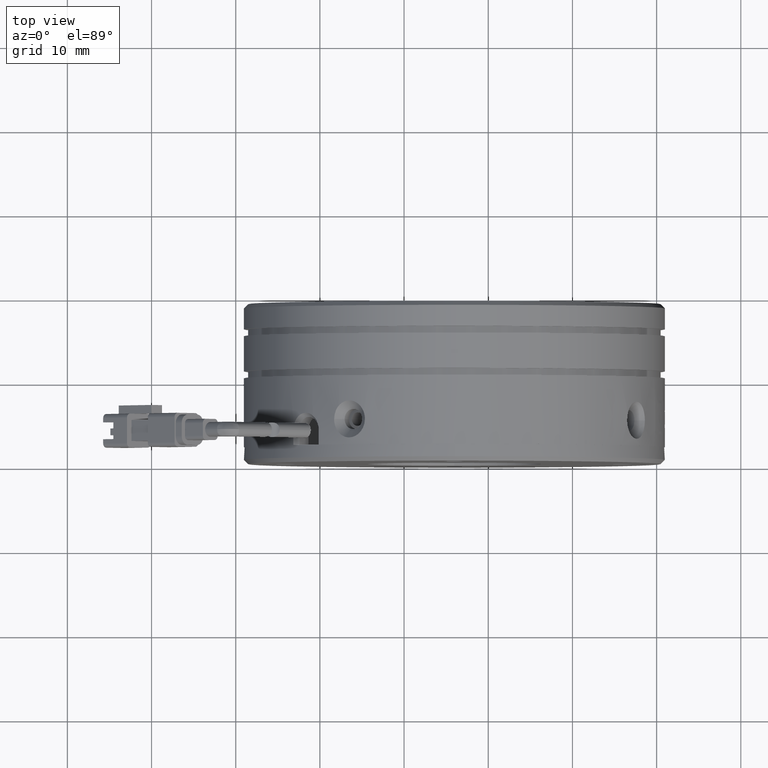
[diagram: clean part render]
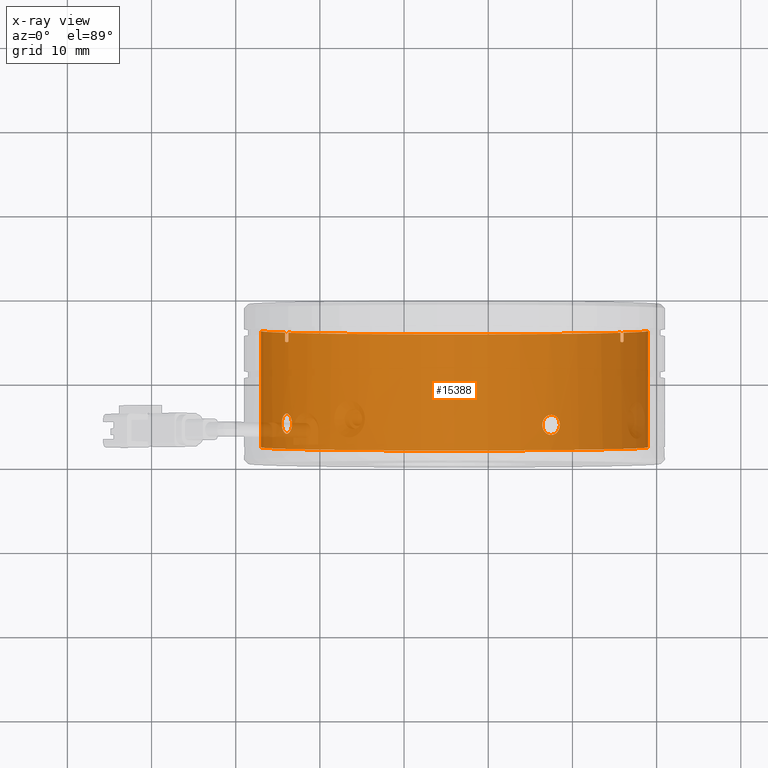
[diagram: x-ray — body ghosted, one internal face saturated and labeled with its STEP entity id]
A machine part, top view, then the same camera in x-ray: the body is ghosted and one INTERNAL B-rep face — a face not visible from any outside direction — is saturated and labeled: STEP entity #15388.
In plain terms, the highlighted cylindrical surface (partial cylindrical patch) has radius 23 mm, axis along (0, -1, 0).
Its self-contained STEP definition (entity closure, byte-faithful):
#498 = CARTESIAN_POINT ( 'NONE',  ( -27.02581863871307600, 15.96823414706070900, 3.167454145892285200E-015 ) ) ;
#734 = ORIENTED_EDGE ( 'NONE', *, *, #17770, .T. ) ;
#788 = CARTESIAN_POINT ( 'NONE',  ( 6.554392098376819600, 4.563459004488598800, -20.42211488420486600 ) ) ;
#910 = EDGE_CURVE ( 'NONE', #18039, #6009, #49071, .T. ) ;
#985 = CARTESIAN_POINT ( 'NONE',  ( 8.497749005629934500, 5.009664952951660600, -19.29145545202758800 ) ) ;
#1733 = CARTESIAN_POINT ( 'NONE',  ( 6.947721575141827100, 6.217228150472411800, -20.21391931231695000 ) ) ;
#1979 = VERTEX_POINT ( 'NONE', #54995 ) ;
#1988 = VERTEX_POINT ( 'NONE', #9140 ) ;
#2031 = EDGE_CURVE ( 'NONE', #18802, #6009, #47375, .T. ) ;
#2530 = CARTESIAN_POINT ( 'NONE',  ( -24.13126204309777700, 19.16823414706070800, -11.17010051490515300 ) ) ;
#2740 = FACE_BOUND ( 'NONE', #37409, .T. ) ;
#2898 = CARTESIAN_POINT ( 'NONE',  ( -24.51727409074066000, 5.168234147060708500, -10.44510667526038500 ) ) ;
#3102 = CARTESIAN_POINT ( 'NONE',  ( -23.44728358399235200, 4.431013859115802600, -12.32149658551559700 ) ) ;
#3816 = VERTEX_POINT ( 'NONE', #18773 ) ;
#3944 = DIRECTION ( 'NONE',  ( 0.0000000000000000000, 1.000000000000000000, -0.0000000000000000000 ) ) ;
#3958 = CARTESIAN_POINT ( 'NONE',  ( -23.39960735652817500, 5.773009289632813800, -12.39596492018088700 ) ) ;
#4165 = CARTESIAN_POINT ( 'NONE',  ( -24.51727409074070600, 5.326803341169756400, -10.44510667526032000 ) ) ;
#4172 = ORIENTED_EDGE ( 'NONE', *, *, #50453, .F. ) ;
#4239 = CARTESIAN_POINT ( 'NONE',  ( 15.70049387221283300, 19.16823414706070800, -11.82677448509476600 ) ) ;
#4655 = LINE ( 'NONE', #4239, #51200 ) ;
#4692 = VERTEX_POINT ( 'NONE', #17653 ) ;
#5312 = ORIENTED_EDGE ( 'NONE', *, *, #41143, .T. ) ;
#5541 = CARTESIAN_POINT ( 'NONE',  ( 6.829413851103458600, 4.209014772784638800, -20.27747997956227600 ) ) ;
#5896 = ORIENTED_EDGE ( 'NONE', *, *, #15730, .F. ) ;
#6009 = VERTEX_POINT ( 'NONE', #53105 ) ;
#6428 = ORIENTED_EDGE ( 'NONE', *, *, #26350, .F. ) ;
#6527 = CARTESIAN_POINT ( 'NONE',  ( 6.632915089850048000, 5.905454435005612600, -20.38146152833930100 ) ) ;
#6947 = VECTOR ( 'NONE', #16332, 1000.000000000000000 ) ;
#7631 = ORIENTED_EDGE ( 'NONE', *, *, #39991, .F. ) ;
#7745 = CARTESIAN_POINT ( 'NONE',  ( -24.50312569071227400, 4.854069292808167900, -10.47299057017806100 ) ) ;
#7943 = CARTESIAN_POINT ( 'NONE',  ( -23.33438525491072100, 4.853772240315541900, -12.49731573444079500 ) ) ;
#8075 = CARTESIAN_POINT ( 'NONE',  ( -24.03305864746466400, 14.85614627210344100, -11.34558758762871700 ) ) ;
#8536 = VERTEX_POINT ( 'NONE', #19551 ) ;
#8791 = CARTESIAN_POINT ( 'NONE',  ( -23.56546572866146900, 6.127453521336774700, -12.13319654212314300 ) ) ;
#9019 = VECTOR ( 'NONE', #55406, 1000.000000000000000 ) ;
#9140 = CARTESIAN_POINT ( 'NONE',  ( 6.419288036547239800, 5.168234147060708500, -20.49145545202761900 ) ) ;
#9216 = VERTEX_POINT ( 'NONE', #498 ) ;
#10173 = CARTESIAN_POINT ( 'NONE',  ( 6.419288036547239800, 5.168234147060708500, -20.49145545202761900 ) ) ;
#10306 = ORIENTED_EDGE ( 'NONE', *, *, #910, .T. ) ;
#10371 = CARTESIAN_POINT ( 'NONE',  ( 7.200301966129214500, 3.999887109736792300, -20.07473702314969400 ) ) ;
#11175 = CARTESIAN_POINT ( 'NONE',  ( 8.471554184323547800, 5.482399001313250000, -19.30852941336860000 ) ) ;
#11383 = CARTESIAN_POINT ( 'NONE',  ( 6.447232694357950300, 5.482696053805874200, -20.47727621323946300 ) ) ;
#11857 = ORIENTED_EDGE ( 'NONE', *, *, #2031, .F. ) ;
#12242 = VECTOR ( 'NONE', #33019, 1000.000000000000000 ) ;
#12603 = CARTESIAN_POINT ( 'NONE',  ( -24.40690138792054900, 4.430366498306113100, -10.65944335786233300 ) ) ;
#12830 = CARTESIAN_POINT ( 'NONE',  ( -23.31727409074066400, 5.168234147060708500, -12.52356764434301100 ) ) ;
#12871 = CARTESIAN_POINT ( 'NONE',  ( 15.82892478249419300, 14.84279221929445700, -11.61060035468653600 ) ) ;
#13224 = CIRCLE ( 'NONE', #25995, 23.00000000000000000 ) ;
#13667 = CARTESIAN_POINT ( 'NONE',  ( -23.78529278002920600, 6.336581184384623800, -11.77217193391860100 ) ) ;
#15206 = CARTESIAN_POINT ( 'NONE',  ( 7.609031954448225200, 3.968127233988175500, -19.84073470178282200 ) ) ;
#15376 = CARTESIAN_POINT ( 'NONE',  ( -24.11658433066670800, 14.90745792059463100, -11.19651942816333300 ) ) ;
#15388 = ADVANCED_FACE ( 'NONE', ( #41127, #2740, #55308 ), #35134, .F. ) ;
#15597 = ORIENTED_EDGE ( 'NONE', *, *, #47476, .F. ) ;
#15730 = EDGE_CURVE ( 'NONE', #18039, #3816, #13224, .T. ) ;
#15989 = CARTESIAN_POINT ( 'NONE',  ( 8.294995099802328300, 5.906101795815303900, -19.42189011271373600 ) ) ;
#16210 = CARTESIAN_POINT ( 'NONE',  ( 6.419288036547239800, 5.168234147060708500, -20.49145545202761900 ) ) ;
#16332 = DIRECTION ( 'NONE',  ( -0.0000000000000000000, -1.000000000000000000, 0.0000000000000000000 ) ) ;
#16478 = ORIENTED_EDGE ( 'NONE', *, *, #45438, .T. ) ;
#17094 = ORIENTED_EDGE ( 'NONE', *, *, #36845, .F. ) ;
#17287 = VECTOR ( 'NONE', #59570, 1000.000000000000000 ) ;
#17440 = CARTESIAN_POINT ( 'NONE',  ( -24.23992541391634600, 4.119610590637159400, -10.97318265881704500 ) ) ;
#17487 = CARTESIAN_POINT ( 'NONE',  ( 15.70049387221283300, 14.91823414709988100, -11.82677448509476600 ) ) ;
#17653 = CARTESIAN_POINT ( 'NONE',  ( 8.497749005629868800, 5.168234147060708500, -19.29145545202763000 ) ) ;
#17672 = CARTESIAN_POINT ( 'NONE',  ( 16.02016269395164400, 14.87457770175983800, -11.27712831792939200 ) ) ;
#17770 = EDGE_CURVE ( 'NONE', #18866, #3816, #4655, .T. ) ;
#17784 = ORIENTED_EDGE ( 'NONE', *, *, #44483, .F. ) ;
#17951 = DIRECTION ( 'NONE',  ( 0.0000000000000000000, -1.000000000000000000, 0.0000000000000000000 ) ) ;
#18039 = VERTEX_POINT ( 'NONE', #32704 ) ;
#18150 = CIRCLE ( 'NONE', #32766, 23.00000000000000000 ) ;
#18511 = CARTESIAN_POINT ( 'NONE',  ( -24.02226217251855900, 6.368341060133242400, -11.36515498491086400 ) ) ;
#18773 = CARTESIAN_POINT ( 'NONE',  ( 15.70049387221281900, 15.96823414706070900, -11.82677448509477200 ) ) ;
#18802 = VERTEX_POINT ( 'NONE', #41322 ) ;
#18866 = VERTEX_POINT ( 'NONE', #44767 ) ;
#19551 = CARTESIAN_POINT ( 'NONE',  ( 16.07962476567176300, 15.96823414706070900, -11.17010051490488800 ) ) ;
#19773 = CIRCLE ( 'NONE', #21257, 23.00000000000000000 ) ;
#19860 = EDGE_CURVE ( 'NONE', #18866, #26311, #34734, .T. ) ;
#20103 = CARTESIAN_POINT ( 'NONE',  ( 7.993178888874879800, 4.119240143649005100, -19.61032425080691200 ) ) ;
#20161 = CARTESIAN_POINT ( 'NONE',  ( 18.97418136128692400, 15.96823414706070900, 3.607411678402394600E-016 ) ) ;
#20424 = B_SPLINE_CURVE_WITH_KNOTS ( 'NONE', 3,
 ( #27998, #51831, #32784, #3958, #37641, #8791, #42474, #13667, #47240, #18511, #52036, #23393, #56841, #28203, #61604, #32992, #4165, #37851 ),
 .UNSPECIFIED., .F., .F.,
 ( 4, 2, 2, 2, 2, 2, 2, 2, 4 ),
 ( 0.0000000000000000000, 0.0004689497391487915200, 0.0009378994782975830300, 0.001406849217446374700, 0.001875798956595166100, 0.002344748695743957500, 0.002813698434892749300, 0.003282648174041540700, 0.003751597913190332100 ),
 .UNSPECIFIED. ) ;
#20630 = ORIENTED_EDGE ( 'NONE', *, *, #36368, .F. ) ;
#20753 = VERTEX_POINT ( 'NONE', #20161 ) ;
#20905 = CARTESIAN_POINT ( 'NONE',  ( 7.993520014015684800, 6.216857703484254000, -19.61010833050399400 ) ) ;
#21106 = VERTEX_POINT ( 'NONE', #51915 ) ;
#21257 = AXIS2_PLACEMENT_3D ( 'NONE', #24143, #57577, #28941 ) ;
#21330 = CARTESIAN_POINT ( 'NONE',  ( 18.97418136128692400, 15.96823414706070900, 3.607411678402394600E-016 ) ) ;
#21868 = LINE ( 'NONE', #2530, #9019 ) ;
#22322 = CARTESIAN_POINT ( 'NONE',  ( -24.02307426297841900, 3.968341622898398800, -11.36372603196254800 ) ) ;
#22369 = CARTESIAN_POINT ( 'NONE',  ( 15.76380047251868900, 14.87433580771676500, -11.72118307610875100 ) ) ;
#23393 = CARTESIAN_POINT ( 'NONE',  ( -24.23973795103000100, 6.217228150472412700, -10.97354021385497100 ) ) ;
#24143 = CARTESIAN_POINT ( 'NONE',  ( -4.025818638713078100, 2.168234147060708900, 3.557538378468061400E-016 ) ) ;
#24950 = CARTESIAN_POINT ( 'NONE',  ( 8.295677946802465300, 4.431013859115814100, -19.42146494527930000 ) ) ;
#25122 = CARTESIAN_POINT ( 'NONE',  ( -24.08666358602147600, 14.88835536865518200, -11.25000000000226100 ) ) ;
#25200 = CARTESIAN_POINT ( 'NONE',  ( -4.025818638713078100, 15.96823414706070900, 3.557538378468061400E-016 ) ) ;
#25728 = CARTESIAN_POINT ( 'NONE',  ( 7.610449721890795200, 6.368126671223016000, -19.83990323745869900 ) ) ;
#25995 = AXIS2_PLACEMENT_3D ( 'NONE', #28986, #28923, #28842 ) ;
#26049 = CARTESIAN_POINT ( 'NONE',  ( 16.07962476567177700, 19.16823414706070800, -11.17010051490488600 ) ) ;
#26311 = VERTEX_POINT ( 'NONE', #58553 ) ;
#26350 = EDGE_CURVE ( 'NONE', #4692, #1988, #28962, .T. ) ;
#26443 = B_SPLINE_CURVE_WITH_KNOTS ( 'NONE', 3,
 ( #2898, #31747, #7745, #41393, #12603, #46193, #17440, #50968, #22322, #55775, #27143, #60527, #31946, #3102, #36784, #7943, #41601, #12830 ),
 .UNSPECIFIED., .F., .F.,
 ( 4, 2, 2, 2, 2, 2, 2, 2, 4 ),
 ( 0.003751597913190332100, 0.004220547989596542600, 0.004689498066002753900, 0.005158448142408964300, 0.005627398218815174800, 0.006096348295221385200, 0.006565298371627595700, 0.007034248448033807000, 0.007503198524440017400 ),
 .UNSPECIFIED. ) ;
#26554 = VERTEX_POINT ( 'NONE', #57157 ) ;
#26950 = CARTESIAN_POINT ( 'NONE',  ( -27.02581863871307600, 15.96823414706070900, 3.167454145892285200E-015 ) ) ;
#27143 = CARTESIAN_POINT ( 'NONE',  ( -23.78645263336407100, 3.999156626933202800, -11.77023631535894700 ) ) ;
#27843 = CARTESIAN_POINT ( 'NONE',  ( 18.97418136128692400, 2.168234147060708900, 3.607411678402394600E-016 ) ) ;
#27998 = CARTESIAN_POINT ( 'NONE',  ( -23.31727409074066400, 5.168234147060708500, -12.52356764434301100 ) ) ;
#28203 = CARTESIAN_POINT ( 'NONE',  ( -24.40728016705234900, 5.905454435005602000, -10.65873372856318500 ) ) ;
#28842 = DIRECTION ( 'NONE',  ( 1.000000000000000000, 0.0000000000000000000, 2.168404344971000200E-019 ) ) ;
#28923 = DIRECTION ( 'NONE',  ( 0.0000000000000000000, -1.000000000000000000, 0.0000000000000000000 ) ) ;
#28941 = DIRECTION ( 'NONE',  ( 1.000000000000000000, 0.0000000000000000000, 2.168404344971000200E-019 ) ) ;
#28962 = B_SPLINE_CURVE_WITH_KNOTS ( 'NONE', 3,
 ( #40008, #35160, #11175, #44799, #15989, #49595, #20905, #54369, #25728, #59154, #30537, #1733, #35372, #6527, #40201, #11383, #45000, #16210 ),
 .UNSPECIFIED., .F., .F.,
 ( 4, 2, 2, 2, 2, 2, 2, 2, 4 ),
 ( 0.003751597913190343000, 0.004220547989596555600, 0.004689498066002767800, 0.005158448142408979900, 0.005627398218815192100, 0.006096348295221404300, 0.006565298371627616500, 0.007034248448033828700, 0.007503198524440040900 ),
 .UNSPECIFIED. ) ;
#28986 = CARTESIAN_POINT ( 'NONE',  ( -4.025818638713078100, 15.96823414706070900, 3.557538378468061400E-016 ) ) ;
#29556 = CARTESIAN_POINT ( 'NONE',  ( 6.447171931464920300, 4.854069292808164300, -20.47730705199924000 ) ) ;
#29760 = CARTESIAN_POINT ( 'NONE',  ( 8.471497095727651000, 4.853772240315533900, -19.30856661619768700 ) ) ;
#30035 = DIRECTION ( 'NONE',  ( 1.000000000000000000, 0.0000000000000000000, 2.168404344971000200E-019 ) ) ;
#30310 = CARTESIAN_POINT ( 'NONE',  ( -23.97722481509784500, 14.83802741222081100, -11.44352997356001100 ) ) ;
#30537 = CARTESIAN_POINT ( 'NONE',  ( 7.202274237861703700, 6.337311667188211000, -20.07364065497242600 ) ) ;
#31617 = LINE ( 'NONE', #21330, #17287 ) ;
#31747 = CARTESIAN_POINT ( 'NONE',  ( -24.51727409074062400, 5.009664838911338500, -10.44510667526045100 ) ) ;
#31946 = CARTESIAN_POINT ( 'NONE',  ( -23.56652378552814000, 4.207178556900194300, -12.13150531025805100 ) ) ;
#32704 = CARTESIAN_POINT ( 'NONE',  ( -23.75213114963882400, 15.96823414706070900, -11.82677448509502600 ) ) ;
#32766 = AXIS2_PLACEMENT_3D ( 'NONE', #46704, #17951, #51482 ) ;
#32784 = CARTESIAN_POINT ( 'NONE',  ( -23.33434805208164100, 5.482399001313252600, -12.49737282303668500 ) ) ;
#32992 = CARTESIAN_POINT ( 'NONE',  ( -24.50309485195251100, 5.482696053805885800, -10.47305133307109400 ) ) ;
#33019 = DIRECTION ( 'NONE',  ( -0.0000000000000000000, -1.000000000000000000, 0.0000000000000000000 ) ) ;
#33105 = CARTESIAN_POINT ( 'NONE',  ( -23.75213114963883100, 19.16823414706070800, -11.82677448509504000 ) ) ;
#33296 = ORIENTED_EDGE ( 'NONE', *, *, #44030, .F. ) ;
#33853 = ORIENTED_EDGE ( 'NONE', *, *, #19860, .F. ) ;
#34079 = LINE ( 'NONE', #26049, #6947 ) ;
#34326 = CARTESIAN_POINT ( 'NONE',  ( -24.13126204309777700, 14.91823414706268200, -11.17010051490515300 ) ) ;
#34351 = CARTESIAN_POINT ( 'NONE',  ( 6.633624719149183100, 4.430366498306113100, -20.38108274920750400 ) ) ;
#34568 = CARTESIAN_POINT ( 'NONE',  ( 8.497749005629868800, 5.168234147060708500, -19.29145545202763000 ) ) ;
#34734 = B_SPLINE_CURVE_WITH_KNOTS ( 'NONE', 3,
 ( #17487, #22369, #12871, #46449, #17672, #51230 ),
 .UNSPECIFIED., .F., .F.,
 ( 4, 2, 4 ),
 ( 1.758853789119408300E-014, 0.0003891355553897409600, 0.0007782711107618934500 ),
 .UNSPECIFIED. ) ;
#34837 = AXIS2_PLACEMENT_3D ( 'NONE', #37999, #37795, #37355 ) ;
#34936 = ORIENTED_EDGE ( 'NONE', *, *, #35196, .T. ) ;
#35134 = CYLINDRICAL_SURFACE ( 'NONE', #34837, 23.00000000000000000 ) ;
#35160 = CARTESIAN_POINT ( 'NONE',  ( 8.497749005629806600, 5.326803455210077600, -19.29145545202767000 ) ) ;
#35196 = EDGE_CURVE ( 'NONE', #9216, #35424, #55991, .T. ) ;
#35372 = CARTESIAN_POINT ( 'NONE',  ( 6.831175771161197100, 6.129289737221221800, -20.27654435823675200 ) ) ;
#35387 = CARTESIAN_POINT ( 'NONE',  ( -24.13126204309777700, 15.96823414706070900, -11.17010051490514200 ) ) ;
#35424 = VERTEX_POINT ( 'NONE', #47891 ) ;
#36368 = EDGE_CURVE ( 'NONE', #49700, #35424, #19773, .T. ) ;
#36784 = CARTESIAN_POINT ( 'NONE',  ( -23.39973138189022700, 4.563038406329858400, -12.39577147087673700 ) ) ;
#36845 = EDGE_CURVE ( 'NONE', #1979, #26554, #20424, .T. ) ;
#37324 = CARTESIAN_POINT ( 'NONE',  ( -24.08666358602147600, 14.88835536865518200, -11.25000000000226100 ) ) ;
#37336 = B_SPLINE_CURVE_WITH_KNOTS ( 'NONE', 3,
 ( #34326, #15376, #53753, #25122 ),
 .UNSPECIFIED., .F., .F.,
 ( 4, 4 ),
 ( 7.106630889490698700E-016, 9.625846192079707600E-005 ),
 .UNSPECIFIED. ) ;
#37355 = DIRECTION ( 'NONE',  ( 1.000000000000000000, 0.0000000000000000000, 2.168404344971000200E-019 ) ) ;
#37409 = EDGE_LOOP ( 'NONE', ( #17784, #6428 ) ) ;
#37641 = CARTESIAN_POINT ( 'NONE',  ( -23.44770875142677000, 5.906101795815301300, -12.32081373851547000 ) ) ;
#37795 = DIRECTION ( 'NONE',  ( 0.0000000000000000000, -1.000000000000000000, 0.0000000000000000000 ) ) ;
#37851 = CARTESIAN_POINT ( 'NONE',  ( -24.51727409074066000, 5.168234147060708500, -10.44510667526038500 ) ) ;
#37999 = CARTESIAN_POINT ( 'NONE',  ( -4.025818638713078100, 15.96823414706070900, 3.557538378468061400E-016 ) ) ;
#39176 = B_SPLINE_CURVE_WITH_KNOTS ( 'NONE', 3,
 ( #10173, #53377, #29556, #788, #34351, #5541, #39233, #10371, #44020, #15206, #48815, #20103, #53581, #24950, #58363, #29760, #985, #34568 ),
 .UNSPECIFIED., .F., .F.,
 ( 4, 2, 2, 2, 2, 2, 2, 2, 4 ),
 ( 0.0000000000000000000, 0.0004689497391487928700, 0.0009378994782975857400, 0.001406849217446378600, 0.001875798956595171500, 0.002344748695743964400, 0.002813698434892757100, 0.003282648174041550300, 0.003751597913190343000 ),
 .UNSPECIFIED. ) ;
#39233 = CARTESIAN_POINT ( 'NONE',  ( 6.947364020103898400, 4.119610590637164700, -20.21410677520329800 ) ) ;
#39991 = EDGE_CURVE ( 'NONE', #8536, #20753, #45709, .T. ) ;
#40008 = CARTESIAN_POINT ( 'NONE',  ( 8.497749005629868800, 5.168234147060708500, -19.29145545202763000 ) ) ;
#40201 = CARTESIAN_POINT ( 'NONE',  ( 6.554596232143154600, 5.773429887791558600, -20.42200936487416000 ) ) ;
#41127 = FACE_BOUND ( 'NONE', #47188, .T. ) ;
#41143 = EDGE_CURVE ( 'NONE', #8536, #26311, #34079, .T. ) ;
#41322 = CARTESIAN_POINT ( 'NONE',  ( -24.08666358602147600, 14.88835536865518200, -11.25000000000226100 ) ) ;
#41393 = CARTESIAN_POINT ( 'NONE',  ( -24.44793352291791800, 4.563459004488588100, -10.58021073708997100 ) ) ;
#41601 = CARTESIAN_POINT ( 'NONE',  ( -23.31727409074066400, 5.009664724872667600, -12.52356764434301300 ) ) ;
#42295 = VERTEX_POINT ( 'NONE', #35387 ) ;
#42474 = CARTESIAN_POINT ( 'NONE',  ( -23.63592696921703500, 6.216857703484254000, -12.01933865272883000 ) ) ;
#43676 = EDGE_CURVE ( 'NONE', #9216, #42295, #18150, .T. ) ;
#44020 = CARTESIAN_POINT ( 'NONE',  ( 7.337907393249398800, 3.968341622898399600, -19.99725562426538200 ) ) ;
#44030 = EDGE_CURVE ( 'NONE', #20753, #49700, #31617, .T. ) ;
#44483 = EDGE_CURVE ( 'NONE', #1988, #4692, #39176, .T. ) ;
#44767 = CARTESIAN_POINT ( 'NONE',  ( 15.70049387221283300, 14.91823414709988100, -11.82677448509476600 ) ) ;
#44799 = CARTESIAN_POINT ( 'NONE',  ( 8.370146281467745200, 5.773009289632824400, -19.37378871781514200 ) ) ;
#45000 = CARTESIAN_POINT ( 'NONE',  ( 6.419288036547241600, 5.326803569248748500, -20.49145545202761900 ) ) ;
#45438 = EDGE_CURVE ( 'NONE', #21106, #42295, #21868, .T. ) ;
#45709 = CIRCLE ( 'NONE', #50064, 23.00000000000000000 ) ;
#46193 = CARTESIAN_POINT ( 'NONE',  ( -24.30329861827532100, 4.209014772784633400, -10.85523248981661100 ) ) ;
#46449 = CARTESIAN_POINT ( 'NONE',  ( 15.95881437383662200, 14.84346665168640700, -11.38557509623158700 ) ) ;
#46704 = CARTESIAN_POINT ( 'NONE',  ( -4.025818638713078100, 15.96823414706070900, 3.557538378468061400E-016 ) ) ;
#47188 = EDGE_LOOP ( 'NONE', ( #17094, #4172 ) ) ;
#47240 = CARTESIAN_POINT ( 'NONE',  ( -23.86572187617173700, 6.368126671223016900, -11.63626836060394600 ) ) ;
#47375 = B_SPLINE_CURVE_WITH_KNOTS ( 'NONE', 3,
 ( #37324, #8075, #30310, #52149, #61720, #49747 ),
 .UNSPECIFIED., .F., .F.,
 ( 4, 2, 4 ),
 ( 6.971257758409268300E-016, 0.0003392395238574776000, 0.0006784790477142580600 ),
 .UNSPECIFIED. ) ;
#47476 = EDGE_CURVE ( 'NONE', #21106, #18802, #37336, .T. ) ;
#47891 = CARTESIAN_POINT ( 'NONE',  ( -27.02581863871307600, 2.168234147060708900, 3.167454145892285200E-015 ) ) ;
#48815 = CARTESIAN_POINT ( 'NONE',  ( 7.744417676645795700, 3.999156626933201100, -19.76063399465103400 ) ) ;
#49071 = LINE ( 'NONE', #33105, #12242 ) ;
#49595 = CARTESIAN_POINT ( 'NONE',  ( 8.107377903409993500, 6.127453521336780900, -19.53964708994842800 ) ) ;
#49700 = VERTEX_POINT ( 'NONE', #27843 ) ;
#49747 = CARTESIAN_POINT ( 'NONE',  ( -23.75213114965118400, 14.91823414705608800, -11.82677448507443800 ) ) ;
#50064 = AXIS2_PLACEMENT_3D ( 'NONE', #25200, #58631, #30035 ) ;
#50453 = EDGE_CURVE ( 'NONE', #26554, #1979, #26443, .T. ) ;
#50968 = CARTESIAN_POINT ( 'NONE',  ( -24.10055566186272800, 3.999887109736790500, -11.22612060484236300 ) ) ;
#51200 = VECTOR ( 'NONE', #3944, 1000.000000000000000 ) ;
#51230 = CARTESIAN_POINT ( 'NONE',  ( 16.07962476566575200, 14.91823414709545900, -11.17010051491571300 ) ) ;
#51482 = DIRECTION ( 'NONE',  ( 1.000000000000000000, 0.0000000000000000000, 2.168404344971000200E-019 ) ) ;
#51831 = CARTESIAN_POINT ( 'NONE',  ( -23.31727409074066400, 5.326803455209498500, -12.52356764434300700 ) ) ;
#51915 = CARTESIAN_POINT ( 'NONE',  ( -24.13126204309777700, 14.91823414706268200, -11.17010051490515300 ) ) ;
#52036 = CARTESIAN_POINT ( 'NONE',  ( -24.09945929368546300, 6.337311667188216400, -11.22809287657485600 ) ) ;
#52149 = CARTESIAN_POINT ( 'NONE',  ( -23.86284854352407000, 14.85100099504852800, -11.64067142507188100 ) ) ;
#53105 = CARTESIAN_POINT ( 'NONE',  ( -23.75213114965118400, 14.91823414705608800, -11.82677448507443800 ) ) ;
#53377 = CARTESIAN_POINT ( 'NONE',  ( 6.419288036547238900, 5.009664838911916700, -20.49145545202761600 ) ) ;
#53581 = CARTESIAN_POINT ( 'NONE',  ( 8.105686671544905400, 4.207178556900186300, -19.54070514681510700 ) ) ;
#53753 = CARTESIAN_POINT ( 'NONE',  ( -24.10172105990644900, 14.89740281173176200, -11.22314972009963600 ) ) ;
#54369 = CARTESIAN_POINT ( 'NONE',  ( 7.746353295205459200, 6.336581184384623800, -19.75947414131616900 ) ) ;
#54506 = VECTOR ( 'NONE', #55399, 1000.000000000000000 ) ;
#54995 = CARTESIAN_POINT ( 'NONE',  ( -23.31727409074066400, 5.168234147060708500, -12.52356764434301100 ) ) ;
#55308 = FACE_OUTER_BOUND ( 'NONE', #57785, .T. ) ;
#55399 = DIRECTION ( 'NONE',  ( 0.0000000000000000000, -1.000000000000000000, 0.0000000000000000000 ) ) ;
#55406 = DIRECTION ( 'NONE',  ( 0.0000000000000000000, 1.000000000000000000, -0.0000000000000000000 ) ) ;
#55775 = CARTESIAN_POINT ( 'NONE',  ( -23.86655334049586200, 3.968127233988175500, -11.63485059316136700 ) ) ;
#55991 = LINE ( 'NONE', #26950, #54506 ) ;
#56841 = CARTESIAN_POINT ( 'NONE',  ( -24.30236299694980000, 6.129289737221230700, -10.85699440987434800 ) ) ;
#57157 = CARTESIAN_POINT ( 'NONE',  ( -24.51727409074066000, 5.168234147060708500, -10.44510667526038500 ) ) ;
#57577 = DIRECTION ( 'NONE',  ( -0.0000000000000000000, 1.000000000000000000, -0.0000000000000000000 ) ) ;
#57785 = EDGE_LOOP ( 'NONE', ( #58888, #34936, #20630, #33296, #7631, #5312, #33853, #734, #5896, #10306, #11857, #15597, #16478 ) ) ;
#58363 = CARTESIAN_POINT ( 'NONE',  ( 8.369952832163601600, 4.563038406329866300, -19.37391274317719000 ) ) ;
#58553 = CARTESIAN_POINT ( 'NONE',  ( 16.07962476566575200, 14.91823414709545900, -11.17010051491571300 ) ) ;
#58631 = DIRECTION ( 'NONE',  ( 0.0000000000000000000, -1.000000000000000000, 0.0000000000000000000 ) ) ;
#58888 = ORIENTED_EDGE ( 'NONE', *, *, #43676, .F. ) ;
#59154 = CARTESIAN_POINT ( 'NONE',  ( 7.339336346197720600, 6.368341060133238900, -19.99644353380551100 ) ) ;
#59570 = DIRECTION ( 'NONE',  ( 0.0000000000000000000, -1.000000000000000000, 0.0000000000000000000 ) ) ;
#60527 = CARTESIAN_POINT ( 'NONE',  ( -23.63614288951995600, 4.119240143649001600, -12.01899752758801700 ) ) ;
#61604 = CARTESIAN_POINT ( 'NONE',  ( -24.44782800358720800, 5.773429887791549800, -10.58041487085629100 ) ) ;
#61720 = CARTESIAN_POINT ( 'NONE',  ( -23.80730710370534100, 14.87997379590575700, -11.73474448026344200 ) ) ;